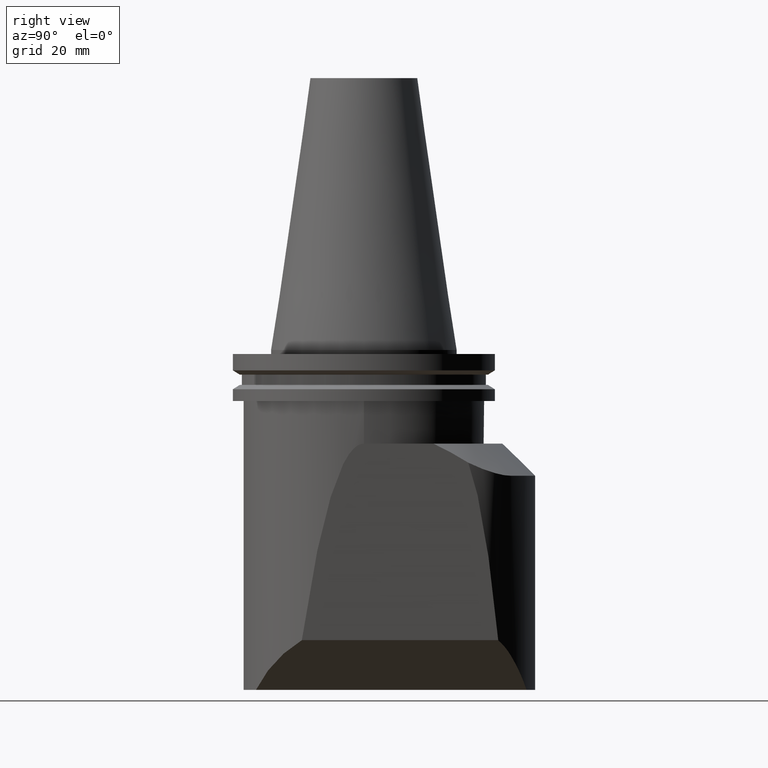
[diagram: clean part render]
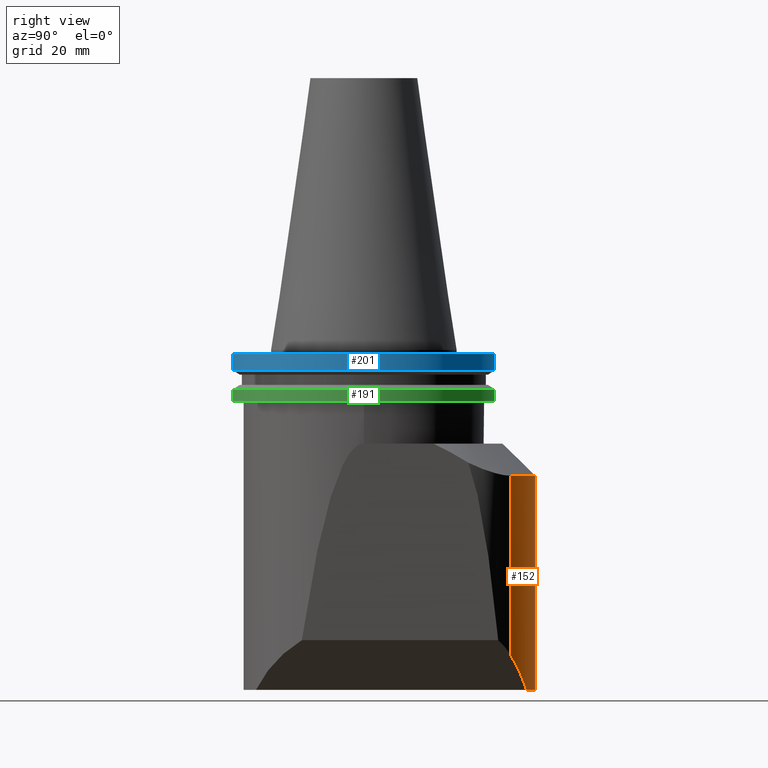
[diagram: same view with three faces highlighted in distinct colors, each labeled with its STEP entity id]
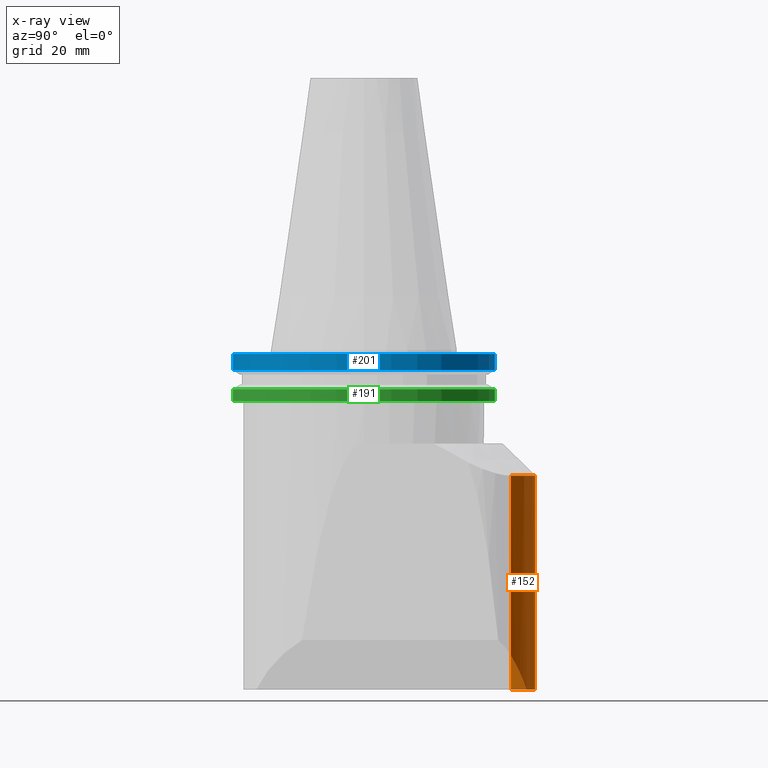
[diagram: x-ray of the same camera — body ghosted, the three highlighted faces saturated]
A machine part, right view with three faces highlighted in distinct colors.
The next image is the same camera in x-ray (body ghosted, the three faces saturated) — at least one of them is partly hidden behind the body in this view.
Their STEP definitions:

[orange] entity #152 — the highlighted cylindrical surface (partial cylindrical patch) has radius 64 mm, axis along (0, -0, -1).
#118=EDGE_CURVE('Unnamed[1]',#325,#309,#326,.T.);
#122=EDGE_CURVE('Unnamed[1]',#325,#317,#331,.T.);
#152=ADVANCED_FACE('Unnamed[1]',(#377),#378,.T.);
#195=EDGE_CURVE('Unnamed[1]',#317,#434,#435,.T.);
#227=EDGE_CURVE('Unnamed[1]',#333,#309,#481,.T.);
#250=EDGE_CURVE('Unnamed[1]',#333,#434,#511,.T.);
#309=VERTEX_POINT('',#575);
#317=VERTEX_POINT('',#586);
#325=VERTEX_POINT('',#617);
#326=CIRCLE('',#618,63.9999999999996);
#331=LINE('',#625,#626);
#333=VERTEX_POINT('',#629);
#377=FACE_OUTER_BOUND('',#691,.T.);
#378=CYLINDRICAL_SURFACE('',#692,63.9999999999996);
#434=VERTEX_POINT('',#782);
#435=CIRCLE('',#783,63.9999999999996);
#481=ELLIPSE('',#853,90.5096679918774,63.9999999999996);
#511=LINE('',#912,#913);
#575=CARTESIAN_POINT('',(19.9999999999995,60.7947366142824,-127.0));
#586=CARTESIAN_POINT('',(-32.8205128205145,54.9437342942625,-47.0000000000007));
#617=CARTESIAN_POINT('',(-32.8205128205145,54.9437342942625,-127.0));
#618=AXIS2_PLACEMENT_3D('',#998,#999,#1000);
#625=CARTESIAN_POINT('',(-32.8205128205141,54.9437342942634,-279.999999999999));
#626=VECTOR('',#1004,1.0);
#629=CARTESIAN_POINT('',(32.8205128205117,54.9437342942642,-114.179487179488));
#691=EDGE_LOOP('',(#1043,#1044,#1045,#1046,#1047));
#692=AXIS2_PLACEMENT_3D('',#1048,#1049,#1050);
#782=CARTESIAN_POINT('',(32.8205128205149,54.9437342942619,-47.0000000000004));
#783=AXIS2_PLACEMENT_3D('',#1125,#1126,#1127);
#853=AXIS2_PLACEMENT_3D('',#1179,#1180,#1181);
#912=CARTESIAN_POINT('',(32.8205128205118,54.9437342942642,-279.999999999999));
#913=VECTOR('',#1219,1.0);
#998=CARTESIAN_POINT('',(1.55530143491714E-014,-7.77650717458572E-015,-127.0));
#999=DIRECTION('',(1.22464679914735E-016,-6.12323399573677E-017,-1.0));
#1000=DIRECTION('',(-1.0,1.83697019872103E-016,-1.22464679914735E-016));
#1004=DIRECTION('',(-1.22464679914735E-016,6.12323399573677E-017,1.0));
#1043=ORIENTED_EDGE('',*,*,#227,.T.);
#1044=ORIENTED_EDGE('',*,*,#118,.F.);
#1045=ORIENTED_EDGE('',*,*,#122,.T.);
#1046=ORIENTED_EDGE('',*,*,#195,.T.);
#1047=ORIENTED_EDGE('',*,*,#250,.F.);
#1048=CARTESIAN_POINT('',(1.0654427152582E-014,-5.32721357629099E-015,-87.0));
#1049=DIRECTION('',(1.22464679914735E-016,-6.12323399573677E-017,-1.0));
#1050=DIRECTION('',(-1.0,1.83697019872103E-016,-1.22464679914735E-016));
#1125=CARTESIAN_POINT('',(5.75583995599252E-015,-2.87791997799626E-015,-46.9999999999997));
#1126=DIRECTION('',(1.22464679914735E-016,-6.12323399573677E-017,-1.0));
#1127=DIRECTION('',(-1.0,1.83697019872103E-016,-1.22464679914735E-016));
#1179=CARTESIAN_POINT('',(1.80023079474661E-014,-9.00115397373303E-015,-147.0));
#1180=DIRECTION('',(-0.707106781186547,1.73191211247099E-016,0.707106781186548));
#1181=DIRECTION('',(-0.707106781186548,8.65956056235496E-017,-0.707106781186547));
#1219=DIRECTION('',(-1.22464679914735E-016,6.12323399573677E-017,1.0));

[blue] entity #201 — the highlighted cylindrical surface (bore or boss wall) has radius 49.2125 mm, axis along (0, -0, -1).
#100=EDGE_CURVE('Unnamed[1]',#295,#295,#296,.T.);
#201=ADVANCED_FACE('Unnamed[1]',(#443,#444),#445,.T.);
#269=EDGE_CURVE('Unnamed[1]',#534,#534,#535,.T.);
#295=VERTEX_POINT('',#556);
#296=CIRCLE('',#557,49.2125);
#443=FACE_BOUND('',#793,.T.);
#444=FACE_BOUND('',#794,.T.);
#445=CYLINDRICAL_SURFACE('',#795,49.2125);
#534=VERTEX_POINT('',#947);
#535=CIRCLE('',#948,49.2125);
#556=CARTESIAN_POINT('',(-49.2125,8.57520141253695E-015,-7.59383323000001));
#557=AXIS2_PLACEMENT_3D('',#965,#966,#967);
#793=EDGE_LOOP('',(#1135));
#794=EDGE_LOOP('',(#1136));
#795=AXIS2_PLACEMENT_3D('',#1137,#1138,#1139);
#947=CARTESIAN_POINT('',(-49.2125,8.94834108051982E-015,-1.50000000000001));
#948=AXIS2_PLACEMENT_3D('',#1243,#1244,#1245);
#965=CARTESIAN_POINT('',(9.29976355837831E-016,-4.64988177918916E-016,-7.59383323));
#966=DIRECTION('',(1.22464679914735E-016,-6.12323399573677E-017,-1.0));
#967=DIRECTION('',(-1.0,1.83697019872103E-016,-1.22464679914735E-016));
#1135=ORIENTED_EDGE('',*,*,#100,.F.);
#1136=ORIENTED_EDGE('',*,*,#269,.T.);
#1137=CARTESIAN_POINT('',(5.56836687854967E-016,-2.78418343927484E-016,-4.546916615));
#1138=DIRECTION('',(1.22464679914735E-016,-6.12323399573677E-017,-1.0));
#1139=DIRECTION('',(-1.0,1.83697019872103E-016,-1.22464679914735E-016));
#1243=CARTESIAN_POINT('',(1.83697019872103E-016,-9.18485099360515E-017,-1.5));
#1244=DIRECTION('',(1.22464679914735E-016,-6.12323399573677E-017,-1.0));
#1245=DIRECTION('',(-1.0,1.83697019872103E-016,-1.22464679914735E-016));

[green] entity #191 — the highlighted cylindrical surface (bore or boss wall) has radius 49.2125 mm, axis along (0, -0, -1).
#120=EDGE_CURVE('Unnamed[1]',#328,#328,#329,.T.);
#160=EDGE_CURVE('Unnamed[1]',#388,#388,#389,.T.);
#191=ADVANCED_FACE('Unnamed[1]',(#428,#429),#430,.T.);
#328=VERTEX_POINT('',#621);
#329=CIRCLE('',#622,49.2125);
#388=VERTEX_POINT('',#708);
#389=CIRCLE('',#709,49.2125);
#428=FACE_BOUND('',#765,.T.);
#429=FACE_BOUND('',#766,.T.);
#430=CYLINDRICAL_SURFACE('',#767,49.2125);
#621=CARTESIAN_POINT('',(-49.2125,8.14337052772293E-015,-14.64616677));
#622=AXIS2_PLACEMENT_3D('',#1001,#1002,#1003);
#708=CARTESIAN_POINT('',(-45.0000000000007,19.9216002432017,-19.05));
#709=AXIS2_PLACEMENT_3D('',#1056,#1057,#1058);
#765=EDGE_LOOP('',(#1120));
#766=EDGE_LOOP('',(#1121));
#767=AXIS2_PLACEMENT_3D('',#1122,#1123,#1124);
#1001=CARTESIAN_POINT('',(1.79363812546588E-015,-8.96819062732943E-016,-14.64616677));
#1002=DIRECTION('',(1.22464679914735E-016,-6.12323399573677E-017,-1.0));
#1003=DIRECTION('',(-1.0,1.83697019872103E-016,-1.22464679914735E-016));
#1056=CARTESIAN_POINT('',(2.33295215237571E-015,-1.16647607618786E-015,-19.05));
#1057=DIRECTION('',(1.22464679914735E-016,-6.12323399573677E-017,-1.0));
#1058=DIRECTION('',(-1.0,1.83697019872103E-016,-1.22464679914735E-016));
#1120=ORIENTED_EDGE('',*,*,#160,.F.);
#1121=ORIENTED_EDGE('',*,*,#120,.T.);
#1122=CARTESIAN_POINT('',(2.06329513892079E-015,-1.0316475694604E-015,-16.848083385));
#1123=DIRECTION('',(1.22464679914735E-016,-6.12323399573677E-017,-1.0));
#1124=DIRECTION('',(-1.0,1.83697019872103E-016,-1.22464679914735E-016));